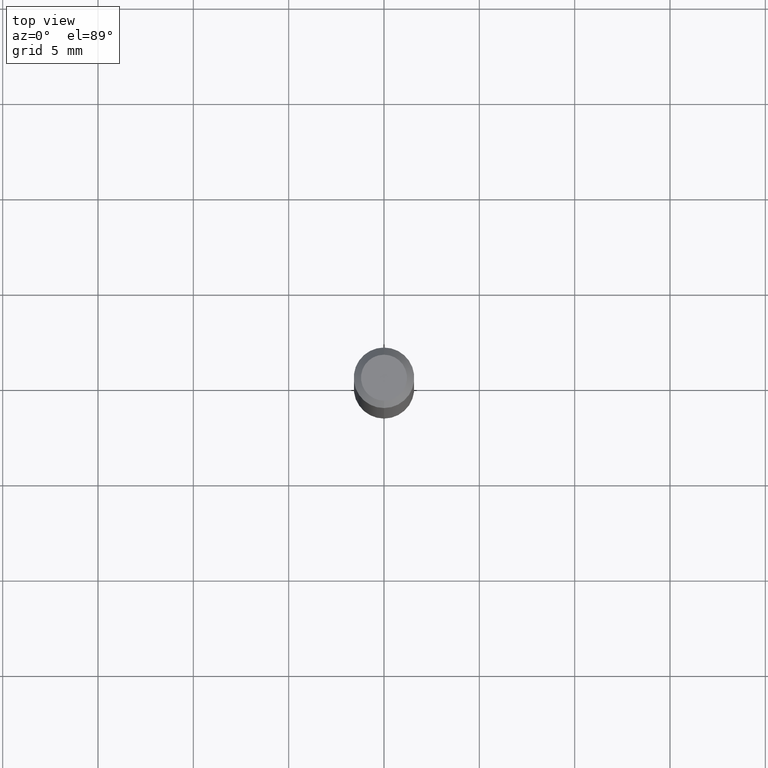
[diagram: clean part render]
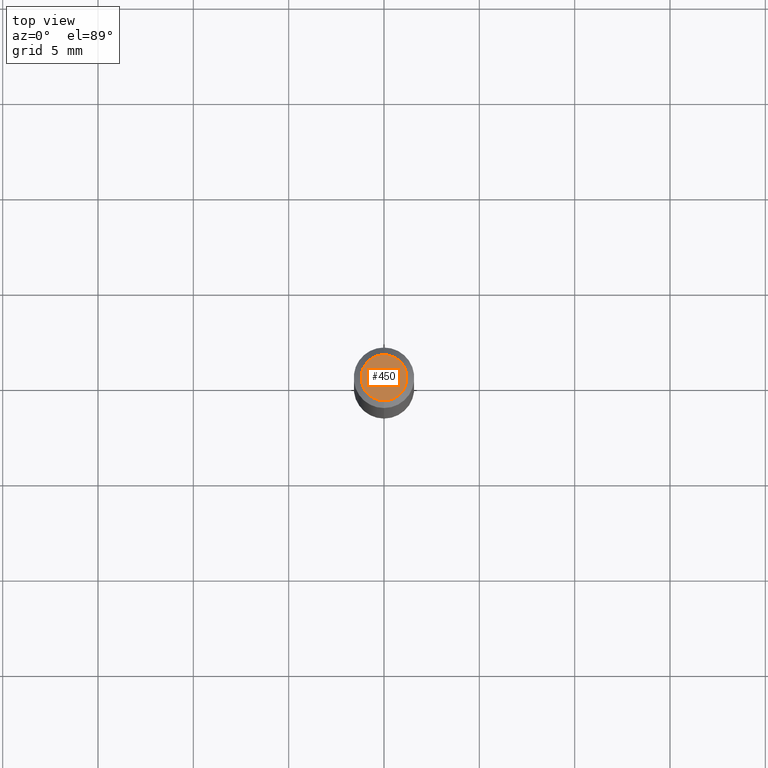
[diagram: same view with one face highlighted and labeled with its STEP entity id]
A machine part, top view. The second image highlights one B-rep face of the part: STEP entity #450.
In plain terms, the highlighted planar face has unit normal (0, -0, -1).
Its self-contained STEP definition (entity closure, byte-faithful):
#1 = CIRCLE ( 'NONE', #16, 0.04749999999999999362 ) ;
#7 = ORIENTED_EDGE ( 'NONE', *, *, #348, .T. ) ;
#16 = AXIS2_PLACEMENT_3D ( 'NONE', #61, #449, #178 ) ;
#29 = VERTEX_POINT ( 'NONE', #231 ) ;
#30 = DIRECTION ( 'NONE',  ( 6.982962677686265922E-15, 1.000000000000000000, -3.491464492531789634E-15 ) ) ;
#37 = EDGE_CURVE ( 'NONE', #29, #186, #155, .T. ) ;
#40 = PLANE ( 'NONE',  #235 ) ;
#61 = CARTESIAN_POINT ( 'NONE',  ( -5.856628655322691539E-45, 8.361632984402382605E-31, 2.394878424880974857E-16 ) ) ;
#155 = CIRCLE ( 'NONE', #420, 0.04749999999999999362 ) ;
#156 = DIRECTION ( 'NONE',  ( -2.445480569901482544E-29, 3.491464492531789239E-15, 1.000000000000000000 ) ) ;
#173 = CARTESIAN_POINT ( 'NONE',  ( -3.773273898774340269E-16, -0.04749999999999999362, 4.053324058833574509E-16 ) ) ;
#178 = DIRECTION ( 'NONE',  ( -6.982962677686266711E-15, -1.000000000000000000, 3.491464492531789634E-15 ) ) ;
#186 = VERTEX_POINT ( 'NONE', #173 ) ;
#215 = ORIENTED_EDGE ( 'NONE', *, *, #37, .T. ) ;
#231 = CARTESIAN_POINT ( 'NONE',  ( 3.840629472727447874E-16, 0.04749999999999999362, 7.364327909283748346E-17 ) ) ;
#235 = AXIS2_PLACEMENT_3D ( 'NONE', #312, #355, #30 ) ;
#247 = EDGE_LOOP ( 'NONE', ( #215, #7 ) ) ;
#311 = CARTESIAN_POINT ( 'NONE',  ( -5.856628655322691539E-45, 8.361632984402382605E-31, 2.394878424880974857E-16 ) ) ;
#312 = CARTESIAN_POINT ( 'NONE',  ( 3.316907271900976096E-16, 0.04749999999999999362, -4.610064215121122239E-17 ) ) ;
#348 = EDGE_CURVE ( 'NONE', #186, #29, #1, .T. ) ;
#351 = DIRECTION ( 'NONE',  ( -6.982962677686266711E-15, -1.000000000000000000, 3.491464492531789634E-15 ) ) ;
#352 = FACE_OUTER_BOUND ( 'NONE', #247, .T. ) ;
#355 = DIRECTION ( 'NONE',  ( 2.445480569901481703E-29, -3.491464492531789634E-15, -1.000000000000000000 ) ) ;
#420 = AXIS2_PLACEMENT_3D ( 'NONE', #311, #156, #351 ) ;
#449 = DIRECTION ( 'NONE',  ( -2.445480569901482544E-29, 3.491464492531789239E-15, 1.000000000000000000 ) ) ;
#450 = ADVANCED_FACE ( 'NONE', ( #352 ), #40, .F. ) ;